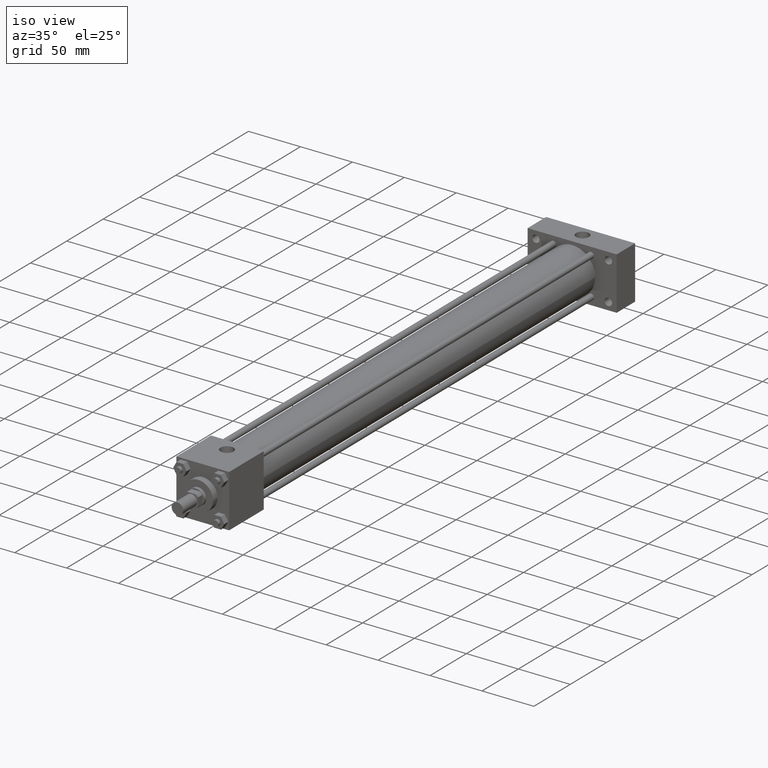
[diagram: clean part render]
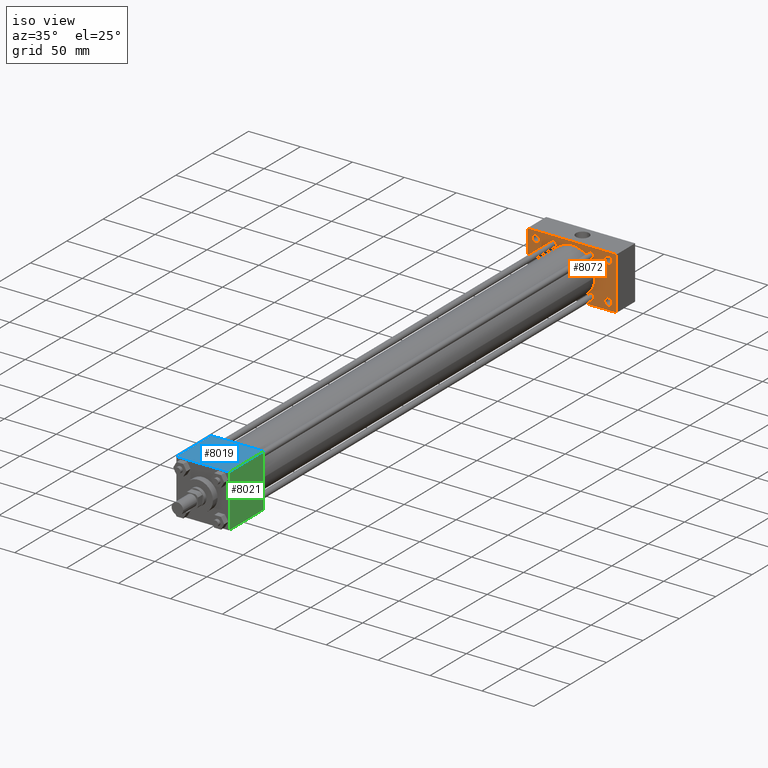
[diagram: same view with three faces highlighted in distinct colors, each labeled with its STEP entity id]
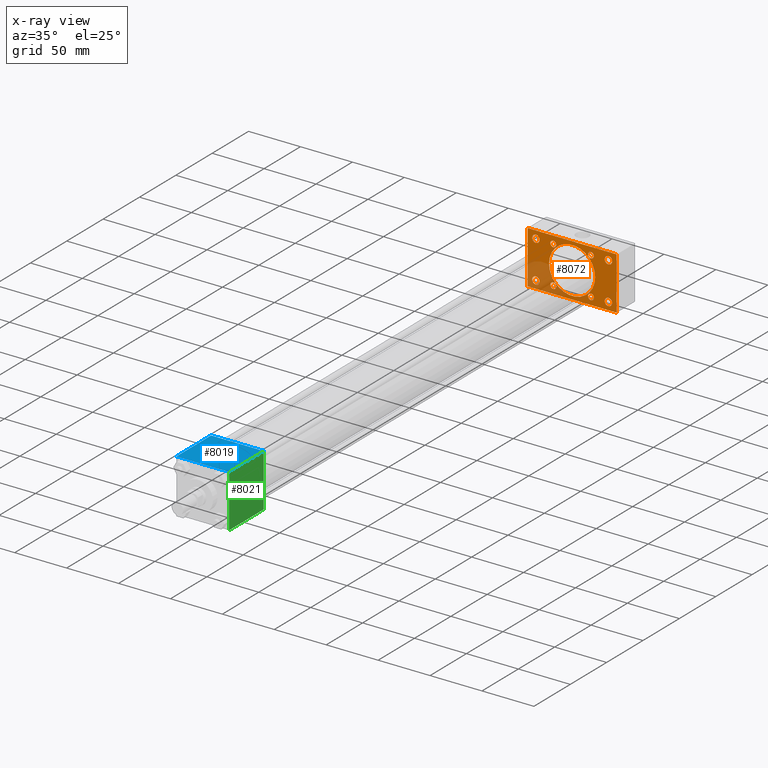
[diagram: x-ray of the same camera — body ghosted, the three highlighted faces saturated]
A machine part, iso view with three faces highlighted in distinct colors.
The next image is the same camera in x-ray (body ghosted, the three faces saturated) — at least one of them is partly hidden behind the body in this view.
Their STEP definitions:

[orange] entity #8072 — the highlighted planar face has unit normal (0, 1, 0).
#2334=EDGE_CURVE('',#2340,#2340,#2335,.T.);
#2335=CIRCLE('',#2336,2.222500000E+001);
#2336=AXIS2_PLACEMENT_3D('',#2337,#2338,#2339);
#2337=CARTESIAN_POINT('',(0.000000000E+000,5.238750000E+002,0.000000000E+000));
#2338=DIRECTION('',(0.0E+000,1.0E+000,0.0E+000));
#2339=DIRECTION('',(1.0E+000,0.0E+000,0.0E+000));
#2340=VERTEX_POINT('',#2341);
#2341=CARTESIAN_POINT('',(2.222500000E+001,5.238750000E+002,0.000000000E+000));
#2416=EDGE_CURVE('',#2422,#2422,#2417,.T.);
#2417=CIRCLE('',#2418,2.857500000E+000);
#2418=AXIS2_PLACEMENT_3D('',#2419,#2420,#2421);
#2419=CARTESIAN_POINT('',(1.816100000E+001,5.238750000E+002,1.816100000E+001));
#2420=DIRECTION('',(0.0E+000,-1.0E+000,0.0E+000));
#2421=DIRECTION('',(-1.0E+000,0.0E+000,0.0E+000));
#2422=VERTEX_POINT('',#2423);
#2423=CARTESIAN_POINT('',(1.530350000E+001,5.238750000E+002,1.816100000E+001));
#2424=EDGE_CURVE('',#2430,#2430,#2425,.T.);
#2425=CIRCLE('',#2426,2.857500000E+000);
#2426=AXIS2_PLACEMENT_3D('',#2427,#2428,#2429);
#2427=CARTESIAN_POINT('',(-1.816100000E+001,5.238750000E+002,-1.816100000E+001));
#2428=DIRECTION('',(0.0E+000,1.0E+000,0.0E+000));
#2429=DIRECTION('',(1.0E+000,0.0E+000,0.0E+000));
#2430=VERTEX_POINT('',#2431);
#2431=CARTESIAN_POINT('',(-1.530350000E+001,5.238750000E+002,-1.816100000E+001));
#2440=EDGE_CURVE('',#2446,#2446,#2441,.T.);
#2441=CIRCLE('',#2442,2.857500000E+000);
#2442=AXIS2_PLACEMENT_3D('',#2443,#2444,#2445);
#2443=CARTESIAN_POINT('',(1.816100000E+001,5.238750000E+002,-1.816100000E+001));
#2444=DIRECTION('',(0.0E+000,1.0E+000,0.0E+000));
#2445=DIRECTION('',(1.0E+000,0.0E+000,0.0E+000));
#2446=VERTEX_POINT('',#2447);
#2447=CARTESIAN_POINT('',(2.101850000E+001,5.238750000E+002,-1.816100000E+001));
#2456=EDGE_CURVE('',#2462,#2462,#2457,.T.);
#2457=CIRCLE('',#2458,2.857500000E+000);
#2458=AXIS2_PLACEMENT_3D('',#2459,#2460,#2461);
#2459=CARTESIAN_POINT('',(-1.816100000E+001,5.238750000E+002,1.816100000E+001));
#2460=DIRECTION('',(0.0E+000,1.0E+000,0.0E+000));
#2461=DIRECTION('',(1.0E+000,0.0E+000,0.0E+000));
#2462=VERTEX_POINT('',#2463);
#2463=CARTESIAN_POINT('',(-1.530350000E+001,5.238750000E+002,1.816100000E+001));
#3400=FACE_OUTER_BOUND('',#3410,.T.);
#3401=FACE_BOUND('',#3411,.T.);
#3402=FACE_BOUND('',#3412,.T.);
#3403=FACE_BOUND('',#3413,.T.);
#3404=FACE_BOUND('',#3414,.T.);
#3405=FACE_BOUND('',#3415,.T.);
#3406=FACE_BOUND('',#3416,.T.);
#3407=FACE_BOUND('',#3417,.T.);
#3408=FACE_BOUND('',#3418,.T.);
#3409=FACE_BOUND('',#3419,.T.);
#3410=EDGE_LOOP('',(#3420));
#3411=EDGE_LOOP('',(#3429));
#3412=EDGE_LOOP('',(#3438,#3439,#3440,#3441));
#3413=EDGE_LOOP('',(#3470));
#3414=EDGE_LOOP('',(#3479));
#3415=EDGE_LOOP('',(#3488));
#3416=EDGE_LOOP('',(#3497));
#3417=EDGE_LOOP('',(#3506));
#3418=EDGE_LOOP('',(#3515));
#3419=EDGE_LOOP('',(#3524));
#3420=ORIENTED_EDGE('',*,*,#2456,.T.);
#3429=ORIENTED_EDGE('',*,*,#2440,.T.);
#3438=ORIENTED_EDGE('',*,*,#3442,.T.);
#3439=ORIENTED_EDGE('',*,*,#3451,.T.);
#3440=ORIENTED_EDGE('',*,*,#3458,.T.);
#3441=ORIENTED_EDGE('',*,*,#3465,.T.);
#3442=EDGE_CURVE('',#3447,#3448,#3443,.T.);
#3443=LINE('',#3444,#3445);
#3444=CARTESIAN_POINT('',(-4.286250000E+001,5.238750000E+002,-2.540000000E+001));
#3445=VECTOR('',#3446,1.0E+000);
#3446=DIRECTION('',(1.0E+000,0.0E+000,0.0E+000));
#3447=VERTEX_POINT('',#3449);
#3448=VERTEX_POINT('',#3450);
#3449=CARTESIAN_POINT('',(-4.286250000E+001,5.238750000E+002,-2.540000000E+001));
#3450=CARTESIAN_POINT('',(4.286250000E+001,5.238750000E+002,-2.540000000E+001));
#3451=EDGE_CURVE('',#3448,#3456,#3452,.T.);
#3452=LINE('',#3453,#3454);
#3453=CARTESIAN_POINT('',(4.286250000E+001,5.238750000E+002,-2.540000000E+001));
#3454=VECTOR('',#3455,1.0E+000);
#3455=DIRECTION('',(0.0E+000,0.0E+000,1.0E+000));
#3456=VERTEX_POINT('',#3457);
#3457=CARTESIAN_POINT('',(4.286250000E+001,5.238750000E+002,2.540000000E+001));
#3458=EDGE_CURVE('',#3456,#3463,#3459,.T.);
#3459=LINE('',#3460,#3461);
#3460=CARTESIAN_POINT('',(4.286250000E+001,5.238750000E+002,2.540000000E+001));
#3461=VECTOR('',#3462,1.0E+000);
#3462=DIRECTION('',(-1.0E+000,0.0E+000,0.0E+000));
#3463=VERTEX_POINT('',#3464);
#3464=CARTESIAN_POINT('',(-4.286250000E+001,5.238750000E+002,2.540000000E+001));
#3465=EDGE_CURVE('',#3463,#3447,#3466,.T.);
#3466=LINE('',#3467,#3468);
#3467=CARTESIAN_POINT('',(-4.286250000E+001,5.238750000E+002,2.540000000E+001));
#3468=VECTOR('',#3469,1.0E+000);
#3469=DIRECTION('',(0.0E+000,0.0E+000,-1.0E+000));
#3470=ORIENTED_EDGE('',*,*,#3471,.F.);
#3471=EDGE_CURVE('',#3477,#3477,#3472,.T.);
#3472=CIRCLE('',#3473,3.568700000E+000);
#3473=AXIS2_PLACEMENT_3D('',#3474,#3475,#3476);
#3474=CARTESIAN_POINT('',(-3.492500000E+001,5.238750000E+002,-1.816100000E+001));
#3475=DIRECTION('',(0.0E+000,-1.0E+000,0.0E+000));
#3476=DIRECTION('',(1.0E+000,0.0E+000,0.0E+000));
#3477=VERTEX_POINT('',#3478);
#3478=CARTESIAN_POINT('',(-3.135630000E+001,5.238750000E+002,-1.816100000E+001));
#3479=ORIENTED_EDGE('',*,*,#3480,.F.);
#3480=EDGE_CURVE('',#3486,#3486,#3481,.T.);
#3481=CIRCLE('',#3482,3.568700000E+000);
#3482=AXIS2_PLACEMENT_3D('',#3483,#3484,#3485);
#3483=CARTESIAN_POINT('',(3.492500000E+001,5.238750000E+002,-1.816100000E+001));
#3484=DIRECTION('',(0.0E+000,-1.0E+000,0.0E+000));
#3485=DIRECTION('',(1.0E+000,0.0E+000,0.0E+000));
#3486=VERTEX_POINT('',#3487);
#3487=CARTESIAN_POINT('',(3.849370000E+001,5.238750000E+002,-1.816100000E+001));
#3488=ORIENTED_EDGE('',*,*,#3489,.F.);
#3489=EDGE_CURVE('',#3495,#3495,#3490,.T.);
#3490=CIRCLE('',#3491,3.568700000E+000);
#3491=AXIS2_PLACEMENT_3D('',#3492,#3493,#3494);
#3492=CARTESIAN_POINT('',(3.492500000E+001,5.238750000E+002,1.816100000E+001));
#3493=DIRECTION('',(0.0E+000,-1.0E+000,0.0E+000));
#3494=DIRECTION('',(1.0E+000,0.0E+000,0.0E+000));
#3495=VERTEX_POINT('',#3496);
#3496=CARTESIAN_POINT('',(3.849370000E+001,5.238750000E+002,1.816100000E+001));
#3497=ORIENTED_EDGE('',*,*,#3498,.F.);
#3498=EDGE_CURVE('',#3504,#3504,#3499,.T.);
#3499=CIRCLE('',#3500,3.568700000E+000);
#3500=AXIS2_PLACEMENT_3D('',#3501,#3502,#3503);
#3501=CARTESIAN_POINT('',(-3.492500000E+001,5.238750000E+002,1.816100000E+001));
#3502=DIRECTION('',(0.0E+000,-1.0E+000,0.0E+000));
#3503=DIRECTION('',(1.0E+000,0.0E+000,0.0E+000));
#3504=VERTEX_POINT('',#3505);
#3505=CARTESIAN_POINT('',(-3.135630000E+001,5.238750000E+002,1.816100000E+001));
#3506=ORIENTED_EDGE('',*,*,#2424,.T.);
#3515=ORIENTED_EDGE('',*,*,#2416,.T.);
#3524=ORIENTED_EDGE('',*,*,#2334,.T.);
#3533=PLANE('',#3534);
#3534=AXIS2_PLACEMENT_3D('',#3535,#3536,#3537);
#3535=CARTESIAN_POINT('',(-4.286250000E+001,5.238750000E+002,-2.540000000E+001));
#3536=DIRECTION('',(0.0E+000,1.0E+000,0.0E+000));
#3537=DIRECTION('',(0.0E+000,0.0E+000,1.0E+000));
#8072=ADVANCED_FACE('',(#3400,#3401,#3402,#3403,#3404,#3405,#3406,#3407,#3408,
   #3409),#3533,.F.);

[blue] entity #8019 — the highlighted planar face has unit normal (0, 0, 1).
#494=VERTEX_POINT('',#495);
#495=CARTESIAN_POINT('',(-2.540000000E+001,6.350000000E+001,2.540000000E+001));
#496=EDGE_CURVE('',#501,#494,#497,.T.);
#497=LINE('',#498,#499);
#498=CARTESIAN_POINT('',(2.540000000E+001,6.350000000E+001,2.540000000E+001));
#499=VECTOR('',#500,1.0E+000);
#500=DIRECTION('',(-1.0E+000,0.0E+000,0.0E+000));
#501=VERTEX_POINT('',#502);
#502=CARTESIAN_POINT('',(2.540000000E+001,6.350000000E+001,2.540000000E+001));
#590=FACE_OUTER_BOUND('',#592,.T.);
#591=FACE_BOUND('',#593,.T.);
#592=EDGE_LOOP('',(#594,#595,#596,#597));
#593=EDGE_LOOP('',(#617));
#594=ORIENTED_EDGE('',*,*,#598,.T.);
#595=ORIENTED_EDGE('',*,*,#605,.F.);
#596=ORIENTED_EDGE('',*,*,#612,.F.);
#597=ORIENTED_EDGE('',*,*,#496,.T.);
#598=EDGE_CURVE('',#494,#603,#599,.T.);
#599=LINE('',#600,#601);
#600=CARTESIAN_POINT('',(-2.540000000E+001,6.350000000E+001,2.540000000E+001));
#601=VECTOR('',#602,1.0E+000);
#602=DIRECTION('',(0.0E+000,-1.0E+000,0.0E+000));
#603=VERTEX_POINT('',#604);
#604=CARTESIAN_POINT('',(-2.540000000E+001,1.587500000E+001,2.540000000E+001));
#605=EDGE_CURVE('',#610,#603,#606,.T.);
#606=LINE('',#607,#608);
#607=CARTESIAN_POINT('',(2.540000000E+001,1.587500000E+001,2.540000000E+001));
#608=VECTOR('',#609,1.0E+000);
#609=DIRECTION('',(-1.0E+000,0.0E+000,0.0E+000));
#610=VERTEX_POINT('',#611);
#611=CARTESIAN_POINT('',(2.540000000E+001,1.587500000E+001,2.540000000E+001));
#612=EDGE_CURVE('',#501,#610,#613,.T.);
#613=LINE('',#614,#615);
#614=CARTESIAN_POINT('',(2.540000000E+001,6.350000000E+001,2.540000000E+001));
#615=VECTOR('',#616,1.0E+000);
#616=DIRECTION('',(0.0E+000,-1.0E+000,0.0E+000));
#617=ORIENTED_EDGE('',*,*,#618,.T.);
#618=EDGE_CURVE('',#624,#624,#619,.T.);
#619=CIRCLE('',#620,6.350000000E+000);
#620=AXIS2_PLACEMENT_3D('',#621,#622,#623);
#621=CARTESIAN_POINT('',(0.000000000E+000,4.921250000E+001,2.540000000E+001));
#622=DIRECTION('',(0.0E+000,0.0E+000,-1.0E+000));
#623=DIRECTION('',(1.0E+000,0.0E+000,0.0E+000));
#624=VERTEX_POINT('',#625);
#625=CARTESIAN_POINT('',(6.350000000E+000,4.921250000E+001,2.540000000E+001));
#626=PLANE('',#627);
#627=AXIS2_PLACEMENT_3D('',#628,#629,#630);
#628=CARTESIAN_POINT('',(2.540000000E+001,6.350000000E+001,2.540000000E+001));
#629=DIRECTION('',(0.0E+000,0.0E+000,1.0E+000));
#630=DIRECTION('',(1.0E+000,0.0E+000,0.0E+000));
#8019=ADVANCED_FACE('',(#590,#591),#626,.T.);

[green] entity #8021 — the highlighted planar face has unit normal (1, 0, 0).
#486=VERTEX_POINT('',#488);
#488=CARTESIAN_POINT('',(2.540000000E+001,6.350000000E+001,-2.540000000E+001));
#501=VERTEX_POINT('',#502);
#502=CARTESIAN_POINT('',(2.540000000E+001,6.350000000E+001,2.540000000E+001));
#503=EDGE_CURVE('',#486,#501,#504,.T.);
#504=LINE('',#505,#506);
#505=CARTESIAN_POINT('',(2.540000000E+001,6.350000000E+001,-2.540000000E+001));
#506=VECTOR('',#507,1.0E+000);
#507=DIRECTION('',(0.0E+000,0.0E+000,1.0E+000));
#557=EDGE_CURVE('',#486,#562,#558,.T.);
#558=LINE('',#559,#560);
#559=CARTESIAN_POINT('',(2.540000000E+001,6.350000000E+001,-2.540000000E+001));
#560=VECTOR('',#561,1.0E+000);
#561=DIRECTION('',(0.0E+000,-1.0E+000,0.0E+000));
#562=VERTEX_POINT('',#563);
#563=CARTESIAN_POINT('',(2.540000000E+001,1.587500000E+001,-2.540000000E+001));
#610=VERTEX_POINT('',#611);
#611=CARTESIAN_POINT('',(2.540000000E+001,1.587500000E+001,2.540000000E+001));
#612=EDGE_CURVE('',#501,#610,#613,.T.);
#613=LINE('',#614,#615);
#614=CARTESIAN_POINT('',(2.540000000E+001,6.350000000E+001,2.540000000E+001));
#615=VECTOR('',#616,1.0E+000);
#616=DIRECTION('',(0.0E+000,-1.0E+000,0.0E+000));
#658=FACE_OUTER_BOUND('',#660,.T.);
#659=FACE_BOUND('',#661,.T.);
#660=EDGE_LOOP('',(#662,#663,#664,#665));
#661=EDGE_LOOP('',(#671));
#662=ORIENTED_EDGE('',*,*,#612,.T.);
#663=ORIENTED_EDGE('',*,*,#666,.F.);
#664=ORIENTED_EDGE('',*,*,#557,.F.);
#665=ORIENTED_EDGE('',*,*,#503,.T.);
#666=EDGE_CURVE('',#562,#610,#667,.T.);
#667=LINE('',#668,#669);
#668=CARTESIAN_POINT('',(2.540000000E+001,1.587500000E+001,-2.540000000E+001));
#669=VECTOR('',#670,1.0E+000);
#670=DIRECTION('',(0.0E+000,0.0E+000,1.0E+000));
#671=ORIENTED_EDGE('',*,*,#672,.T.);
#672=EDGE_CURVE('',#678,#678,#673,.T.);
#673=CIRCLE('',#674,2.778125000E+000);
#674=AXIS2_PLACEMENT_3D('',#675,#676,#677);
#675=CARTESIAN_POINT('',(2.540000000E+001,4.603750000E+001,0.000000000E+000));
#676=DIRECTION('',(-1.0E+000,0.0E+000,0.0E+000));
#677=DIRECTION('',(0.0E+000,1.0E+000,0.0E+000));
#678=VERTEX_POINT('',#679);
#679=CARTESIAN_POINT('',(2.540000000E+001,4.881562500E+001,0.000000000E+000));
#680=PLANE('',#681);
#681=AXIS2_PLACEMENT_3D('',#682,#683,#684);
#682=CARTESIAN_POINT('',(2.540000000E+001,6.350000000E+001,-2.540000000E+001));
#683=DIRECTION('',(1.0E+000,0.0E+000,0.0E+000));
#684=DIRECTION('',(0.0E+000,0.0E+000,-1.0E+000));
#8021=ADVANCED_FACE('',(#658,#659),#680,.T.);